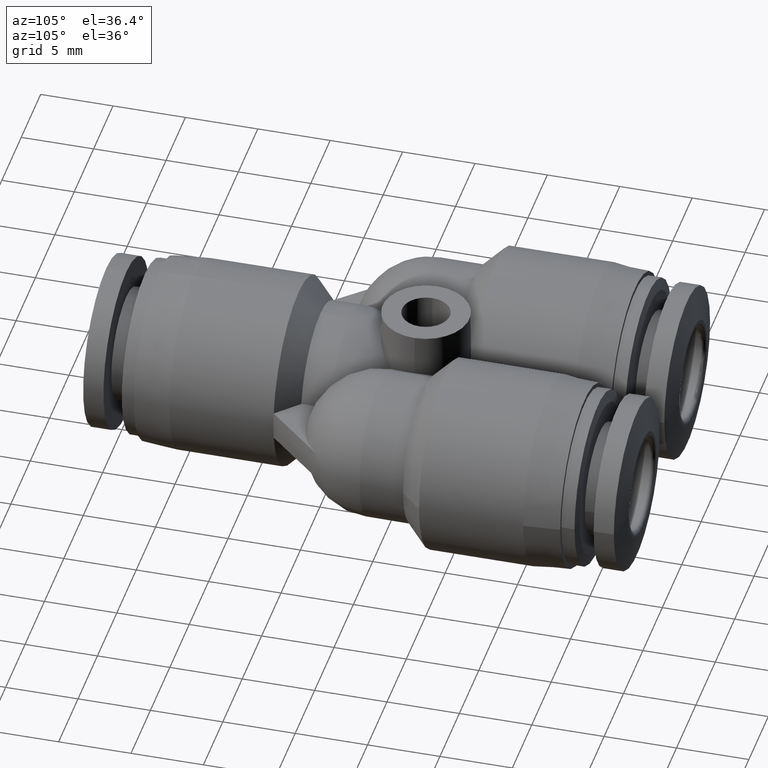
[diagram: clean part render]
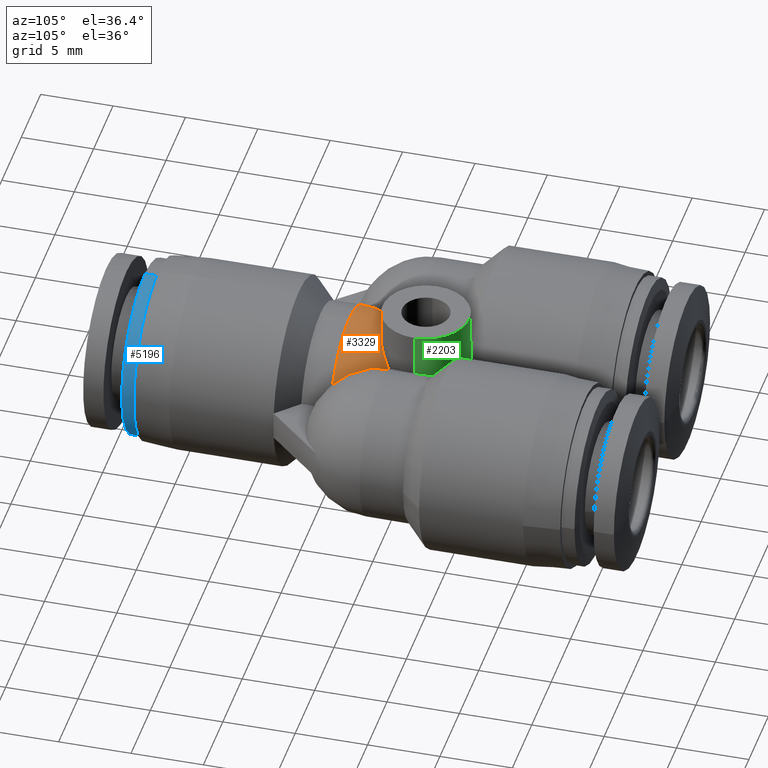
[diagram: same view with three faces highlighted in distinct colors, each labeled with its STEP entity id]
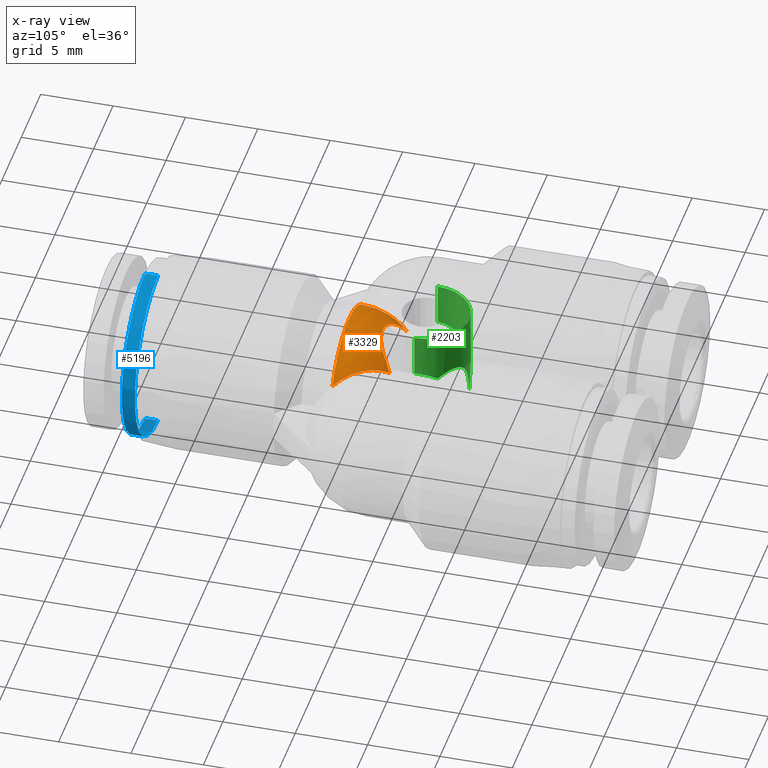
[diagram: x-ray of the same camera — body ghosted, the three highlighted faces saturated]
A machine part, auxiliary view with three faces highlighted in distinct colors.
The next image is the same camera in x-ray (body ghosted, the three faces saturated) — at least one of them is partly hidden behind the body in this view.
Their STEP definitions:

[orange] entity #3329 — the highlighted face is a freeform B-spline surface patch.
#60 = CARTESIAN_POINT ( 'NONE',  ( -0.1716838279831953400, 0.4212598425198296200, 0.09630545524130781900 ) ) ;
#86 = CARTESIAN_POINT ( 'NONE',  ( -0.09872948265596046000, 0.5460501700532934800, 0.1161006428140637100 ) ) ;
#204 = CIRCLE ( 'NONE', #2432, 0.1968503937008949700 ) ;
#223 = CARTESIAN_POINT ( 'NONE',  ( 0.1472519663707816700, 0.4630511847516054500, 0.1245855146685866900 ) ) ;
#349 = CARTESIAN_POINT ( 'NONE',  ( -0.02650522943600143800, 0.5147060128808121900, 0.1713047926863139300 ) ) ;
#405 = CARTESIAN_POINT ( 'NONE',  ( 0.1728944458028001100, 0.4212598425198291800, 0.09411476032346438600 ) ) ;
#544 = CARTESIAN_POINT ( 'NONE',  ( -0.09257637847665961500, 0.5565752166757894600, 0.1089469649204580200 ) ) ;
#681 = CARTESIAN_POINT ( 'NONE',  ( 0.1296823272623577100, 0.4931045148054958300, 0.1296958778351818000 ) ) ;
#781 = CARTESIAN_POINT ( 'NONE',  ( 0.07310882393875589600, 0.5368549128177264600, 0.1419841567373240400 ) ) ;
#801 = CARTESIAN_POINT ( 'NONE',  ( -0.05057499626028055100, 0.5228033930483848600, 0.1612435995772557900 ) ) ;
#852 = CARTESIAN_POINT ( 'NONE',  ( 0.08838253686282478100, 0.5681813519646904400, 0.2158075512746704900 ) ) ;
#956 = CARTESIAN_POINT ( 'NONE',  ( -0.1603987516797172100, 0.4405632625126311700, 0.1133614872300167000 ) ) ;
#985 = VERTEX_POINT ( 'NONE', #1830 ) ;
#1088 = CARTESIAN_POINT ( 'NONE',  ( 0.1663527539163684500, 0.4303787850025675400, 0.1058091661241676400 ) ) ;
#1120 = CARTESIAN_POINT ( 'NONE',  ( 0.1190560089530685300, 0.5112811119134949000, 0.1285340674648665900 ) ) ;
#1224 = CARTESIAN_POINT ( 'NONE',  ( 0.05075607067322169400, 0.5228948045096264400, 0.1611241514760403100 ) ) ;
#1244 = CARTESIAN_POINT ( 'NONE',  ( -0.07291978447195202100, 0.5366996652898574600, 0.1422159206523628300 ) ) ;
#1301 = CARTESIAN_POINT ( 'NONE',  ( 0.08838253686282478100, 0.4212598425198279000, 0.2493681935755365000 ) ) ;
#1340 = ORIENTED_EDGE ( 'NONE', *, *, #5323, .T. ) ;
#1407 = CARTESIAN_POINT ( 'NONE',  ( -0.1403647765716148100, 0.4748319041449200500, 0.1279775991353701800 ) ) ;
#1579 = CARTESIAN_POINT ( 'NONE',  ( 0.1086425977944975900, 0.5290935257373697900, 0.1239705782561892200 ) ) ;
#1634 = B_SPLINE_CURVE_WITH_KNOTS ( 'NONE', 3,
 ( #60, #2729, #956, #4087, #1407, #4542, #1864, #5012, #2312, #5468, #2753, #86, #3183, #544 ),
 .UNSPECIFIED., .F., .F.,
 ( 4, 2, 2, 2, 2, 2, 4 ),
 ( 1.226634733346699300E-017, 0.001067358897915968800, 0.002134717795831924200, 0.002668397244789902200, 0.003202076693747879300, 0.003735756142705857300, 0.004269435591663835400 ),
 .UNSPECIFIED. ) ;
#1678 = CARTESIAN_POINT ( 'NONE',  ( 0.02681815624522352100, 0.5147813972238687300, 0.1712128697281841700 ) ) ;
#1701 = CARTESIAN_POINT ( 'NONE',  ( -0.08881789558110958500, 0.5518313106651515600, 0.1180327632494836400 ) ) ;
#1718 = DIRECTION ( 'NONE',  ( -0.0000000000000000000, -1.000000000000000000, -0.0000000000000000000 ) ) ;
#1749 = CARTESIAN_POINT ( 'NONE',  ( -0.08838253686282460100, 0.5681813519646904400, 0.2158075512746704900 ) ) ;
#1766 = ORIENTED_EDGE ( 'NONE', *, *, #4833, .F. ) ;
#1814 = CARTESIAN_POINT ( 'NONE',  ( 0.09257637847656681500, 0.5565752166759430100, 0.1089469649203462400 ) ) ;
#1830 = CARTESIAN_POINT ( 'NONE',  ( -0.1716838279831953400, 0.4212598425198296200, 0.09630545524130781900 ) ) ;
#1846 = DIRECTION ( 'NONE',  ( -0.0000000000000000000, -1.000000000000000000, -0.0000000000000000000 ) ) ;
#1864 = CARTESIAN_POINT ( 'NONE',  ( -0.1261044173791233700, 0.4992246238162929000, 0.1296855331369278500 ) ) ;
#1971 = EDGE_CURVE ( 'NONE', #985, #4700, #1634, .T. ) ;
#2019 = CARTESIAN_POINT ( 'NONE',  ( 0.09872948265587247500, 0.5460501700534439200, 0.1161006428139773800 ) ) ;
#2108 = CARTESIAN_POINT ( 'NONE',  ( 0.09257637847656681500, 0.5565752166759430100, 0.1089469649203462400 ) ) ;
#2127 = CARTESIAN_POINT ( 'NONE',  ( 0.01095496147641376500, 0.5121977997942347400, 0.1743271106218415300 ) ) ;
#2204 = CARTESIAN_POINT ( 'NONE',  ( -0.08838253686282460100, 0.4212598425198279000, 0.2493681935755365000 ) ) ;
#2312 = CARTESIAN_POINT ( 'NONE',  ( -0.1155633151417383200, 0.5172554565907711000, 0.1273969538001823700 ) ) ;
#2362 = AXIS2_PLACEMENT_3D ( 'NONE', #4522, #1846, #4993 ) ;
#2373 = CARTESIAN_POINT ( 'NONE',  ( -0.09257637847665961500, 0.5565752166757894600, 0.1089469649204580200 ) ) ;
#2432 = AXIS2_PLACEMENT_3D ( 'NONE', #4389, #1718, #4861 ) ;
#2474 = CARTESIAN_POINT ( 'NONE',  ( 0.09257637847656681500, 0.5565752166759430100, 0.1089469649203462400 ) ) ;
#2574 = CARTESIAN_POINT ( 'NONE',  ( -0.005235733238455894100, 0.5118030146621097600, 0.1747967491619086500 ) ) ;
#2603 = EDGE_LOOP ( 'NONE', ( #3478, #1340, #4673, #4661, #1766 ) ) ;
#2637 = CARTESIAN_POINT ( 'NONE',  ( -0.1728944458028000600, 0.4767099079411692400, 0.08144854270701949700 ) ) ;
#2719 = FACE_OUTER_BOUND ( 'NONE', #2603, .T. ) ;
#2729 = CARTESIAN_POINT ( 'NONE',  ( -0.1663527539163751300, 0.4303787850025558300, 0.1058091661241557000 ) ) ;
#2753 = CARTESIAN_POINT ( 'NONE',  ( -0.1052417005432581800, 0.5349108499829131600, 0.1216845463592271100 ) ) ;
#2789 = CIRCLE ( 'NONE', #2362, 0.1968503937008949700 ) ;
#2884 = CARTESIAN_POINT ( 'NONE',  ( 0.1603987516797021600, 0.4405632625126570900, 0.1133614872300359500 ) ) ;
#3004 = CARTESIAN_POINT ( 'NONE',  ( -0.02135092055693348800, 0.5136336222787132300, 0.1725998675762274200 ) ) ;
#3057 = CARTESIAN_POINT ( 'NONE',  ( 0.1728944458028001100, 0.4504315197699428900, 0.09411476032346463600 ) ) ;
#3072 = CARTESIAN_POINT ( 'NONE',  ( -0.1728944458028000600, 0.4212598425198291800, 0.09411476032346445500 ) ) ;
#3183 = CARTESIAN_POINT ( 'NONE',  ( -0.09559180651181005400, 0.5514172476682887000, 0.1127909921440656000 ) ) ;
#3215 = B_SPLINE_CURVE_WITH_KNOTS ( 'NONE', 3,
 ( #4693, #1088, #2884, #223, #3331, #681, #3769, #1120, #4249, #1579, #4714, #2019, #5176, #2474 ),
 .UNSPECIFIED., .F., .F.,
 ( 4, 2, 2, 2, 2, 2, 4 ),
 ( 1.412628475557503000E-017, 0.001067358897917321900, 0.002134717795834629900, 0.002668397244793283600, 0.003202076693751937700, 0.003735756142710591800, 0.004269435591669245100 ),
 .UNSPECIFIED. ) ;
#3262 = CARTESIAN_POINT ( 'NONE',  ( 0.1716838279831954000, 0.4212598425198297300, 0.09630545524130773600 ) ) ;
#3329 = ADVANCED_FACE ( 'NONE', ( #2719 ), #5376, .T. ) ;
#3331 = CARTESIAN_POINT ( 'NONE',  ( 0.1403647765715709500, 0.4748319041449947700, 0.1279775991353888600 ) ) ;
#3446 = CARTESIAN_POINT ( 'NONE',  ( 0.08429049886225369000, 0.5468468541100604000, 0.1264501304889812100 ) ) ;
#3461 = CARTESIAN_POINT ( 'NONE',  ( -0.04154299207671662700, 0.5188698420721370400, 0.1661818854618937200 ) ) ;
#3478 = ORIENTED_EDGE ( 'NONE', *, *, #4473, .F. ) ;
#3520 = CARTESIAN_POINT ( 'NONE',  ( 0.08838253686282478100, 0.6163313875917427700, 0.1553434526151101800 ) ) ;
#3769 = CARTESIAN_POINT ( 'NONE',  ( 0.1261044173790604200, 0.4992246238164005900, 0.1296855331369248500 ) ) ;
#3886 = CARTESIAN_POINT ( 'NONE',  ( 0.06636954634972978800, 0.5318094656043131900, 0.1491331638199102400 ) ) ;
#3907 = CARTESIAN_POINT ( 'NONE',  ( -0.06631676189887242300, 0.5317675297834506500, 0.1491930274918942000 ) ) ;
#3966 = CARTESIAN_POINT ( 'NONE',  ( 0.08838253686282478100, 0.4985536531232613900, 0.2493681935755371600 ) ) ;
#4087 = CARTESIAN_POINT ( 'NONE',  ( -0.1472519663708166400, 0.4630511847515456100, 0.1245855146685633800 ) ) ;
#4249 = CARTESIAN_POINT ( 'NONE',  ( 0.1155633151416633300, 0.5172554565908992200, 0.1273969538001540100 ) ) ;
#4252 = EDGE_CURVE ( 'NONE', #4992, #4700, #4409, .T. ) ;
#4355 = CARTESIAN_POINT ( 'NONE',  ( 0.04165709558110690400, 0.5189248249420984600, 0.1661125249114536500 ) ) ;
#4374 = CARTESIAN_POINT ( 'NONE',  ( -0.08424497990313834000, 0.5467927808506412000, 0.1265435912670530000 ) ) ;
#4389 = CARTESIAN_POINT ( 'NONE',  ( 0.0000000000000000000, 0.4212598425198300100, 0.0000000000000000000 ) ) ;
#4409 = B_SPLINE_CURVE_WITH_KNOTS ( 'NONE', 3,
 ( #2108, #5269, #3446, #781, #3886, #1224, #4355, #1678, #4820, #2127, #5290, #2574, #5716, #3004, #349, #3461, #801, #3907, #1244, #4374, #1701, #4843 ),
 .UNSPECIFIED., .F., .F.,
 ( 4, 2, 2, 2, 2, 2, 2, 2, 2, 2, 4 ),
 ( 6.133173666733496700E-019, 0.0008212165511866057400, 0.001642433102373210800, 0.002463649653559814800, 0.002874257929153117100, 0.003284866204746419000, 0.003695474480339720900, 0.004106082755933023300, 0.004927299307119626200, 0.005748515858306229100, 0.006569732409492831100 ),
 .UNSPECIFIED. ) ;
#4427 = CARTESIAN_POINT ( 'NONE',  ( -0.08838253686282460100, 0.6163313875917427700, 0.1553434526151101800 ) ) ;
#4473 = EDGE_CURVE ( 'NONE', #4710, #5297, #2789, .T. ) ;
#4522 = CARTESIAN_POINT ( 'NONE',  ( 0.0000000000000000000, 0.4212598425198300100, 0.0000000000000000000 ) ) ;
#4542 = CARTESIAN_POINT ( 'NONE',  ( -0.1296823272624170500, 0.4931045148053943000, 0.1296958778351783000 ) ) ;
#4661 = ORIENTED_EDGE ( 'NONE', *, *, #1971, .F. ) ;
#4673 = ORIENTED_EDGE ( 'NONE', *, *, #4252, .T. ) ;
#4693 = CARTESIAN_POINT ( 'NONE',  ( 0.1716838279831954000, 0.4212598425198297300, 0.09630545524130773600 ) ) ;
#4700 = VERTEX_POINT ( 'NONE', #2373 ) ;
#4710 = VERTEX_POINT ( 'NONE', #3262 ) ;
#4714 = CARTESIAN_POINT ( 'NONE',  ( 0.1052417005431736100, 0.5349108499830576000, 0.1216845463591656600 ) ) ;
#4820 = CARTESIAN_POINT ( 'NONE',  ( 0.02158508692825159700, 0.5136762244690122900, 0.1725484312350409300 ) ) ;
#4833 = EDGE_CURVE ( 'NONE', #5297, #985, #204, .T. ) ;
#4843 = CARTESIAN_POINT ( 'NONE',  ( -0.09257637847665961500, 0.5565752166757894600, 0.1089469649204580200 ) ) ;
#4861 = DIRECTION ( 'NONE',  ( 0.0000000000000000000, 0.0000000000000000000, 1.000000000000000000 ) ) ;
#4893 = CARTESIAN_POINT ( 'NONE',  ( -0.08838253686282460100, 0.4985536531232613900, 0.2493681935755371600 ) ) ;
#4992 = VERTEX_POINT ( 'NONE', #1814 ) ;
#4993 = DIRECTION ( 'NONE',  ( 0.0000000000000000000, 0.0000000000000000000, 1.000000000000000000 ) ) ;
#5012 = CARTESIAN_POINT ( 'NONE',  ( -0.1190560089531396100, 0.5112811119133733300, 0.1285340674648853800 ) ) ;
#5117 = CARTESIAN_POINT ( 'NONE',  ( 0.0000000000000000000, 0.4212598425198300100, 0.1968503937008949700 ) ) ;
#5176 = CARTESIAN_POINT ( 'NONE',  ( 0.09559180651172541300, 0.5514172476684335900, 0.1127909921439708800 ) ) ;
#5269 = CARTESIAN_POINT ( 'NONE',  ( 0.08882342620055774800, 0.5518382913380799300, 0.1180193934682500400 ) ) ;
#5290 = CARTESIAN_POINT ( 'NONE',  ( 0.005591044806619150700, 0.5118192998036966700, 0.1747773078981476300 ) ) ;
#5297 = VERTEX_POINT ( 'NONE', #5117 ) ;
#5302 = CARTESIAN_POINT ( 'NONE',  ( 0.1728944458028001100, 0.4948823500542953700, 0.05862861498518233400 ) ) ;
#5323 = EDGE_CURVE ( 'NONE', #4710, #4992, #3215, .T. ) ;
#5359 = CARTESIAN_POINT ( 'NONE',  ( -0.1728944458028000600, 0.4948823500542954300, 0.05862861498518239000 ) ) ;
#5376 =( BOUNDED_SURFACE ( )  B_SPLINE_SURFACE ( 3, 3, ( 
 ( #5302, #5768, #3057, #405 ),
 ( #3520, #852, #3966, #1301 ),
 ( #4427, #1749, #4893, #2204 ),
 ( #5359, #2637, #5787, #3072 ) ),
 .UNSPECIFIED., .F., .F., .F. ) 
 B_SPLINE_SURFACE_WITH_KNOTS ( ( 4, 4 ),
 ( 4, 4 ),
 ( 0.0000000000000000000, 1.000000000000000000 ),
 ( 0.0000000000000000000, 1.000000000000000000 ),
 .UNSPECIFIED. ) 
 GEOMETRIC_REPRESENTATION_ITEM ( )  RATIONAL_B_SPLINE_SURFACE ( (
 ( 1.000000000000000000, 0.9338790372117729000, 0.9338790372117729000, 1.000000000000000000),
 ( 0.6520686549619456600, 0.6089532476918375600, 0.6089532476918375600, 0.6520686549619456600),
 ( 0.6520686549619456600, 0.6089532476918375600, 0.6089532476918375600, 0.6520686549619456600),
 ( 1.000000000000000000, 0.9338790372117729000, 0.9338790372117729000, 1.000000000000000000) ) ) 
 REPRESENTATION_ITEM ( '' )  SURFACE ( )  );
#5468 = CARTESIAN_POINT ( 'NONE',  ( -0.1086425977945803500, 0.5290935257372285600, 0.1239705782562395000 ) ) ;
#5716 = CARTESIAN_POINT ( 'NONE',  ( -0.01074532665046967100, 0.5121791076030962600, 0.1743494091610173500 ) ) ;
#5768 = CARTESIAN_POINT ( 'NONE',  ( 0.1728944458028001100, 0.4767099079411691900, 0.08144854270701941400 ) ) ;
#5787 = CARTESIAN_POINT ( 'NONE',  ( -0.1728944458028000600, 0.4504315197699428900, 0.09411476032346470500 ) ) ;

[blue] entity #5196 — the highlighted cylindrical surface (partial cylindrical patch) has radius 6 mm, axis along (0, 1, 0).
#5 = VERTEX_POINT ( 'NONE', #4804 ) ;
#184 = CARTESIAN_POINT ( 'NONE',  ( 0.0000000000000000000, -0.09842519685021013100, 0.2362204724410344200 ) ) ;
#414 = AXIS2_PLACEMENT_3D ( 'NONE', #967, #4492, #4114 ) ;
#486 = FACE_OUTER_BOUND ( 'NONE', #4478, .T. ) ;
#767 = EDGE_CURVE ( 'NONE', #5, #2797, #880, .T. ) ;
#822 = VECTOR ( 'NONE', #5530, 39.37007874015748100 ) ;
#880 = LINE ( 'NONE', #5547, #822 ) ;
#962 = CYLINDRICAL_SURFACE ( 'NONE', #414, 0.2362204724410344200 ) ;
#967 = CARTESIAN_POINT ( 'NONE',  ( 0.0000000000000000000, -0.1163176853429890600, 0.0000000000000000000 ) ) ;
#1146 = DIRECTION ( 'NONE',  ( 0.0000000000000000000, 1.000000000000000000, 0.0000000000000000000 ) ) ;
#1261 = ORIENTED_EDGE ( 'NONE', *, *, #3028, .F. ) ;
#1279 = VERTEX_POINT ( 'NONE', #184 ) ;
#1516 = CARTESIAN_POINT ( 'NONE',  ( 0.0000000000000000000, -0.1342101738107592000, 0.2362204724375969500 ) ) ;
#1649 = AXIS2_PLACEMENT_3D ( 'NONE', #4491, #1807, #4954 ) ;
#1750 = LINE ( 'NONE', #3793, #4134 ) ;
#1807 = DIRECTION ( 'NONE',  ( -0.0000000000000000000, -1.000000000000000000, -0.0000000000000000000 ) ) ;
#1930 = DIRECTION ( 'NONE',  ( -0.0000000000000000000, -1.000000000000000000, -0.0000000000000000000 ) ) ;
#2797 = VERTEX_POINT ( 'NONE', #4157 ) ;
#3028 = EDGE_CURVE ( 'NONE', #3824, #1279, #1750, .T. ) ;
#3050 = ORIENTED_EDGE ( 'NONE', *, *, #767, .T. ) ;
#3377 = EDGE_CURVE ( 'NONE', #5, #3824, #5068, .T. ) ;
#3793 = CARTESIAN_POINT ( 'NONE',  ( 0.0000000000000000000, -0.1163176853429890600, 0.2362204724410344200 ) ) ;
#3824 = VERTEX_POINT ( 'NONE', #1516 ) ;
#3940 = ORIENTED_EDGE ( 'NONE', *, *, #3377, .F. ) ;
#4114 = DIRECTION ( 'NONE',  ( 0.0000000000000000000, 0.0000000000000000000, 1.000000000000000000 ) ) ;
#4134 = VECTOR ( 'NONE', #1146, 39.37007874015748100 ) ;
#4157 = CARTESIAN_POINT ( 'NONE',  ( 2.892866454679883900E-017, -0.09842519685021013100, -0.2362204724410344200 ) ) ;
#4198 = CIRCLE ( 'NONE', #5085, 0.2362204724410344200 ) ;
#4478 = EDGE_LOOP ( 'NONE', ( #3940, #3050, #4558, #1261 ) ) ;
#4491 = CARTESIAN_POINT ( 'NONE',  ( 0.0000000000000000000, -0.1342101738107592000, 0.0000000000000000000 ) ) ;
#4492 = DIRECTION ( 'NONE',  ( 0.0000000000000000000, 1.000000000000000000, 0.0000000000000000000 ) ) ;
#4558 = ORIENTED_EDGE ( 'NONE', *, *, #4677, .T. ) ;
#4606 = CARTESIAN_POINT ( 'NONE',  ( 0.0000000000000000000, -0.09842519685021013100, 0.0000000000000000000 ) ) ;
#4677 = EDGE_CURVE ( 'NONE', #2797, #1279, #4198, .T. ) ;
#4804 = CARTESIAN_POINT ( 'NONE',  ( 2.892866454658835500E-017, -0.1342101738107592000, -0.2362204724375969500 ) ) ;
#4954 = DIRECTION ( 'NONE',  ( -1.000000000000000000, 0.0000000000000000000, 0.0000000000000000000 ) ) ;
#5068 = CIRCLE ( 'NONE', #1649, 0.2362204724375969200 ) ;
#5075 = DIRECTION ( 'NONE',  ( 0.0000000000000000000, 0.0000000000000000000, 1.000000000000000000 ) ) ;
#5085 = AXIS2_PLACEMENT_3D ( 'NONE', #4606, #1930, #5075 ) ;
#5196 = ADVANCED_FACE ( 'NONE', ( #486 ), #962, .T. ) ;
#5530 = DIRECTION ( 'NONE',  ( 0.0000000000000000000, 1.000000000000000000, 0.0000000000000000000 ) ) ;
#5547 = CARTESIAN_POINT ( 'NONE',  ( 2.892866454679883900E-017, -0.1163176853429890600, -0.2362204724410344200 ) ) ;

[green] entity #2203 — the highlighted cylindrical surface (partial cylindrical patch) has radius 3 mm, axis along (0, 0, 1).
#57 = EDGE_CURVE ( 'NONE', #929, #1070, #2598, .T. ) ;
#141 = CIRCLE ( 'NONE', #2484, 0.1181102362205711000 ) ;
#212 = ORIENTED_EDGE ( 'NONE', *, *, #3641, .T. ) ;
#318 = CARTESIAN_POINT ( 'NONE',  ( -0.001986728486886975300, 0.7480908818258237300, 0.03725428689208105200 ) ) ;
#336 = CARTESIAN_POINT ( 'NONE',  ( -0.08160754015855738200, 0.7154319075129602600, 0.1396022489849548500 ) ) ;
#399 = CARTESIAN_POINT ( 'NONE',  ( 0.1151696138341365400, 0.6566243702144062300, 0.1376501428821515500 ) ) ;
#449 = VERTEX_POINT ( 'NONE', #1367 ) ;
#491 = CARTESIAN_POINT ( 'NONE',  ( -0.1181102362206809300, 0.6299212598426984200, 0.1405792997745702000 ) ) ;
#771 = CARTESIAN_POINT ( 'NONE',  ( -0.01104155837710526700, 0.7475649997357880500, 0.07334296864352855800 ) ) ;
#790 = CARTESIAN_POINT ( 'NONE',  ( -0.09377262057335175600, 0.7022737360026440900, 0.1337035615217256300 ) ) ;
#846 = CARTESIAN_POINT ( 'NONE',  ( 0.1069257083047660300, 0.6809409728645317000, 0.1288803346394084600 ) ) ;
#878 = EDGE_CURVE ( 'NONE', #5237, #1001, #141, .T. ) ;
#929 = VERTEX_POINT ( 'NONE', #2736 ) ;
#930 = CARTESIAN_POINT ( 'NONE',  ( -0.1181102362206794500, 0.6353395710339988500, 0.1405792997745122500 ) ) ;
#992 = LINE ( 'NONE', #4283, #4414 ) ;
#1001 = VERTEX_POINT ( 'NONE', #1374 ) ;
#1010 = DIRECTION ( 'NONE',  ( 0.0000000000000000000, 0.0000000000000000000, 1.000000000000000000 ) ) ;
#1065 = VECTOR ( 'NONE', #1010, 39.37007874015748100 ) ;
#1070 = VERTEX_POINT ( 'NONE', #2659 ) ;
#1201 = LINE ( 'NONE', #5516, #1065 ) ;
#1215 = CARTESIAN_POINT ( 'NONE',  ( -0.02201277868194781800, 0.7460756272950112000, 0.09935115301036545600 ) ) ;
#1235 = CARTESIAN_POINT ( 'NONE',  ( -0.1022864650250808200, 0.6889763779339909100, 0.1230904787874729400 ) ) ;
#1365 = EDGE_CURVE ( 'NONE', #449, #929, #2361, .T. ) ;
#1367 = CARTESIAN_POINT ( 'NONE',  ( 0.1181102362204665700, 0.6299212598426984200, 0.1405792997743602600 ) ) ;
#1374 = CARTESIAN_POINT ( 'NONE',  ( 0.1181102362204639300, 0.6299212598427199600, 0.2559055118110236700 ) ) ;
#1452 = CARTESIAN_POINT ( 'NONE',  ( -1.071758661417322900E-013, 0.6299212598427199600, 0.0000000000000000000 ) ) ;
#1486 = CARTESIAN_POINT ( 'NONE',  ( -0.1181102362206782700, 0.6299212598427199600, 0.2559055118110236700 ) ) ;
#1533 = FACE_OUTER_BOUND ( 'NONE', #5725, .T. ) ;
#1665 = CARTESIAN_POINT ( 'NONE',  ( -0.03780563563342265200, 0.7420627119520142300, 0.1223717314877072500 ) ) ;
#1834 = CARTESIAN_POINT ( 'NONE',  ( -0.1162754010147675500, 0.6513425395556947700, 0.1387608603252758500 ) ) ;
#1912 = DIRECTION ( 'NONE',  ( 1.000000000000000000, 0.0000000000000000000, 0.0000000000000000000 ) ) ;
#2048 = ORIENTED_EDGE ( 'NONE', *, *, #878, .T. ) ;
#2071 = AXIS2_PLACEMENT_3D ( 'NONE', #1452, #4589, #1912 ) ;
#2095 = CARTESIAN_POINT ( 'NONE',  ( -1.258038088733706900E-009, 0.7480314960632910000, 0.01879520216223730400 ) ) ;
#2114 = CARTESIAN_POINT ( 'NONE',  ( -0.05170012528250261800, 0.7362017904601302300, 0.1337439549008918000 ) ) ;
#2203 = ADVANCED_FACE ( 'NONE', ( #1533 ), #5113, .T. ) ;
#2288 = CARTESIAN_POINT ( 'NONE',  ( -0.1109785500917237800, 0.6716592753230132800, 0.1332762639249774600 ) ) ;
#2361 = B_SPLINE_CURVE_WITH_KNOTS ( 'NONE', 3,
 ( #5316, #4404, #5766, #3052, #399, #3515, #846, #3959 ),
 .UNSPECIFIED., .F., .F.,
 ( 4, 2, 2, 4 ),
 ( 0.001646045219232876300, 0.002057107328216045800, 0.002468169437199215300, 0.003290293655165564700 ),
 .UNSPECIFIED. ) ;
#2379 = DIRECTION ( 'NONE',  ( 1.000000000000000000, 0.0000000000000000000, 0.0000000000000000000 ) ) ;
#2419 = DIRECTION ( 'NONE',  ( -0.0000000000000000000, -0.0000000000000000000, -1.000000000000000000 ) ) ;
#2484 = AXIS2_PLACEMENT_3D ( 'NONE', #2620, #2419, #2379 ) ;
#2531 = ORIENTED_EDGE ( 'NONE', *, *, #57, .T. ) ;
#2563 = CARTESIAN_POINT ( 'NONE',  ( -0.06316342137833244600, 0.7298305725474396600, 0.1391479818259020700 ) ) ;
#2598 = B_SPLINE_CURVE_WITH_KNOTS ( 'NONE', 3,
 ( #4584, #4745, #4900, #4411, #4354, #4315, #4201, #4244, #4178, #4160, #4117, #4056, #4034, #4015, #3972, #3927, #3826, #3846, #3736, #3764, #3694, #3638 ),
 .UNSPECIFIED., .F., .F.,
 ( 4, 2, 2, 2, 2, 2, 2, 2, 2, 2, 4 ),
 ( 6.668251995522243100E-016, 0.0003581436306646129300, 0.0007162872613285589700, 0.001432574522656451100, 0.002148861783984344200, 0.002507005414648289700, 0.002865149045312235700, 0.003581436306640128100, 0.004297723567968021400, 0.005014010829295914200, 0.005730298090623807100 ),
 .UNSPECIFIED. ) ;
#2620 = CARTESIAN_POINT ( 'NONE',  ( -1.071758661417322900E-013, 0.6299212598427199600, 0.2559055118110236700 ) ) ;
#2659 = CARTESIAN_POINT ( 'NONE',  ( 2.694776239649465400E-006, 0.7480098096903347000, 1.638193822959764200E-008 ) ) ;
#2722 = CARTESIAN_POINT ( 'NONE',  ( -0.1022864650250808200, 0.6889763779339909100, 0.1230904787874729400 ) ) ;
#2736 = CARTESIAN_POINT ( 'NONE',  ( 0.1022864650138850100, 0.6889763779530111400, 0.1230904787595050300 ) ) ;
#2780 = EDGE_CURVE ( 'NONE', #4469, #5237, #1201, .T. ) ;
#2802 = ORIENTED_EDGE ( 'NONE', *, *, #2780, .T. ) ;
#2943 = CARTESIAN_POINT ( 'NONE',  ( -0.1022864650250808200, 0.6889763779339909100, 0.1230904787874729400 ) ) ;
#2993 = CARTESIAN_POINT ( 'NONE',  ( -0.07459716745438509100, 0.7216116305666707700, 0.1406910857389314700 ) ) ;
#3052 = CARTESIAN_POINT ( 'NONE',  ( 0.1162754010127378100, 0.6513425395662172400, 0.1387608603232412500 ) ) ;
#3437 = CARTESIAN_POINT ( 'NONE',  ( -0.008338103380417693400, 0.7477558838693875200, 0.06436749371505680300 ) ) ;
#3452 = CARTESIAN_POINT ( 'NONE',  ( -0.08491073186043425500, 0.7121388664359217200, 0.1384444414296359900 ) ) ;
#3515 = CARTESIAN_POINT ( 'NONE',  ( 0.1109785500847734900, 0.6716592753420875800, 0.1332762639175365500 ) ) ;
#3609 = B_SPLINE_CURVE_WITH_KNOTS ( 'NONE', 3,
 ( #491, #930, #4516, #1834, #4982, #2288, #5444, #2722 ),
 .UNSPECIFIED., .F., .F.,
 ( 4, 2, 2, 4 ),
 ( 0.001646045219232249600, 0.002057107328011099900, 0.002468169436789950700, 0.003290293654347651300 ),
 .UNSPECIFIED. ) ;
#3638 = CARTESIAN_POINT ( 'NONE',  ( 2.694776239649465400E-006, 0.7480098096903347000, 1.638193822959764200E-008 ) ) ;
#3641 = EDGE_CURVE ( 'NONE', #1070, #4219, #5061, .T. ) ;
#3694 = CARTESIAN_POINT ( 'NONE',  ( 6.012201164248448800E-010, 0.7480314960632940000, 0.009390044435542775600 ) ) ;
#3736 = CARTESIAN_POINT ( 'NONE',  ( 0.002587404786028948300, 0.7480077130631573900, 0.03732094085189332400 ) ) ;
#3764 = CARTESIAN_POINT ( 'NONE',  ( 0.0005118208137975282400, 0.7480349471831985200, 0.01873277183827155900 ) ) ;
#3801 = DIRECTION ( 'NONE',  ( 0.0000000000000000000, 0.0000000000000000000, 1.000000000000000000 ) ) ;
#3826 = CARTESIAN_POINT ( 'NONE',  ( 0.008456757601419088700, 0.7477479773785068500, 0.06479981098280711300 ) ) ;
#3846 = CARTESIAN_POINT ( 'NONE',  ( 0.004162101253194634200, 0.7479777252630699400, 0.04661187308434924800 ) ) ;
#3855 = CARTESIAN_POINT ( 'NONE',  ( 2.694776239649465400E-006, 0.7480098096903347000, 1.638193822959764200E-008 ) ) ;
#3873 = CARTESIAN_POINT ( 'NONE',  ( -0.01789967929952827500, 0.7467183789356088800, 0.09087886020153031200 ) ) ;
#3895 = CARTESIAN_POINT ( 'NONE',  ( -0.09851398123095067600, 0.6955105115413994200, 0.1288319578861849600 ) ) ;
#3927 = CARTESIAN_POINT ( 'NONE',  ( 0.01116673753880819000, 0.7475524312581679500, 0.07370233075003504400 ) ) ;
#3959 = CARTESIAN_POINT ( 'NONE',  ( 0.1022864650138850100, 0.6889763779530111400, 0.1230904787595050300 ) ) ;
#3972 = CARTESIAN_POINT ( 'NONE',  ( 0.01797310228256153400, 0.7467063449784952000, 0.09102614966961092300 ) ) ;
#4015 = CARTESIAN_POINT ( 'NONE',  ( 0.02212263805657508800, 0.7460535141595288100, 0.09954637765162426000 ) ) ;
#4034 = CARTESIAN_POINT ( 'NONE',  ( 0.02957918494572839300, 0.7442961724976469000, 0.1112985998889956000 ) ) ;
#4056 = CARTESIAN_POINT ( 'NONE',  ( 0.03226993966100041200, 0.7435795007241985400, 0.1150492756699753200 ) ) ;
#4117 = CARTESIAN_POINT ( 'NONE',  ( 0.03815919855904432300, 0.7417399536793363200, 0.1221229332077509400 ) ) ;
#4140 = CARTESIAN_POINT ( 'NONE',  ( -0.1181102362206809300, 0.6299212598426984200, 0.1405792997745702000 ) ) ;
#4160 = CARTESIAN_POINT ( 'NONE',  ( 0.04137950976693623200, 0.7406066363243180000, 0.1254563861590542200 ) ) ;
#4176 = EDGE_CURVE ( 'NONE', #449, #1001, #992, .T. ) ;
#4178 = CARTESIAN_POINT ( 'NONE',  ( 0.05157499237731166800, 0.7364294850779923300, 0.1341847347935610800 ) ) ;
#4201 = CARTESIAN_POINT ( 'NONE',  ( 0.07482622486672098300, 0.7217857912537466400, 0.1413763180520945800 ) ) ;
#4207 = ORIENTED_EDGE ( 'NONE', *, *, #1365, .T. ) ;
#4219 = VERTEX_POINT ( 'NONE', #2943 ) ;
#4244 = CARTESIAN_POINT ( 'NONE',  ( 0.05938442191129501100, 0.7324470931406612500, 0.1384450833949472100 ) ) ;
#4283 = CARTESIAN_POINT ( 'NONE',  ( 0.1181102362204639300, 0.6299212598427199600, 0.0000000000000000000 ) ) ;
#4315 = CARTESIAN_POINT ( 'NONE',  ( 0.08200636748650044800, 0.7153768569391755200, 0.1400059026313961700 ) ) ;
#4345 = CARTESIAN_POINT ( 'NONE',  ( -0.03201122888190380300, 0.7437267110698683200, 0.1151534490266583300 ) ) ;
#4354 = CARTESIAN_POINT ( 'NONE',  ( 0.09083729074535160100, 0.7055389388665394000, 0.1352700071879432100 ) ) ;
#4404 = CARTESIAN_POINT ( 'NONE',  ( 0.1181102362204651300, 0.6353395710366913600, 0.1405792997743023100 ) ) ;
#4411 = CARTESIAN_POINT ( 'NONE',  ( 0.09352689942178003800, 0.7021671159413932500, 0.1332311802560139900 ) ) ;
#4414 = VECTOR ( 'NONE', #3801, 39.37007874015748100 ) ;
#4469 = VERTEX_POINT ( 'NONE', #4140 ) ;
#4516 = CARTESIAN_POINT ( 'NONE',  ( -0.1177391160818311900, 0.6407073921409959200, 0.1402183700175916600 ) ) ;
#4584 = CARTESIAN_POINT ( 'NONE',  ( 0.1022864650138850100, 0.6889763779530111400, 0.1230904787595050300 ) ) ;
#4589 = DIRECTION ( 'NONE',  ( 0.0000000000000000000, 0.0000000000000000000, 1.000000000000000000 ) ) ;
#4745 = CARTESIAN_POINT ( 'NONE',  ( 0.1004042117537328100, 0.6922365362323081900, 0.1259551478444375400 ) ) ;
#4810 = CARTESIAN_POINT ( 'NONE',  ( -0.04809843884421188100, 0.7378578335678770400, 0.1312206896086156900 ) ) ;
#4900 = CARTESIAN_POINT ( 'NONE',  ( 0.09829888472768957800, 0.6955267009293659700, 0.1285771628120281100 ) ) ;
#4980 = ORIENTED_EDGE ( 'NONE', *, *, #5025, .F. ) ;
#4982 = CARTESIAN_POINT ( 'NONE',  ( -0.1151696138372314100, 0.6566243702015278600, 0.1376501428852873500 ) ) ;
#5025 = EDGE_CURVE ( 'NONE', #4469, #4219, #3609, .T. ) ;
#5061 = B_SPLINE_CURVE_WITH_KNOTS ( 'NONE', 3,
 ( #3855, #2095, #318, #3437, #771, #3873, #1215, #4345, #1665, #4810, #2114, #5282, #2563, #5707, #2993, #336, #3452, #790, #3895, #1235 ),
 .UNSPECIFIED., .F., .F.,
 ( 4, 2, 2, 2, 2, 2, 2, 2, 2, 4 ),
 ( 5.497127610501959900E-019, 0.001411996552341762800, 0.002117994828512644100, 0.002823993104683526500, 0.003529991380854408900, 0.003882990518939851000, 0.004235989657025294300, 0.004588988795110736400, 0.004941987933196178400, 0.005647986209367064300 ),
 .UNSPECIFIED. ) ;
#5113 = CYLINDRICAL_SURFACE ( 'NONE', #2071, 0.1181102362205711000 ) ;
#5237 = VERTEX_POINT ( 'NONE', #1486 ) ;
#5282 = CARTESIAN_POINT ( 'NONE',  ( -0.05927882189462625000, 0.7321683889825229000, 0.1377410144756230100 ) ) ;
#5316 = CARTESIAN_POINT ( 'NONE',  ( 0.1181102362204665700, 0.6299212598426984200, 0.1405792997743602600 ) ) ;
#5444 = CARTESIAN_POINT ( 'NONE',  ( -0.1069257083041983800, 0.6809409728653697000, 0.1288803346385207500 ) ) ;
#5516 = CARTESIAN_POINT ( 'NONE',  ( -0.1181102362206782700, 0.6299212598427199600, 0.0000000000000000000 ) ) ;
#5527 = ORIENTED_EDGE ( 'NONE', *, *, #4176, .F. ) ;
#5707 = CARTESIAN_POINT ( 'NONE',  ( -0.07079470477737301300, 0.7245764146988215000, 0.1406250145344692700 ) ) ;
#5725 = EDGE_LOOP ( 'NONE', ( #4980, #2802, #2048, #5527, #4207, #2531, #212 ) ) ;
#5766 = CARTESIAN_POINT ( 'NONE',  ( 0.1177391160812496200, 0.6407073921463316600, 0.1402183700170263600 ) ) ;